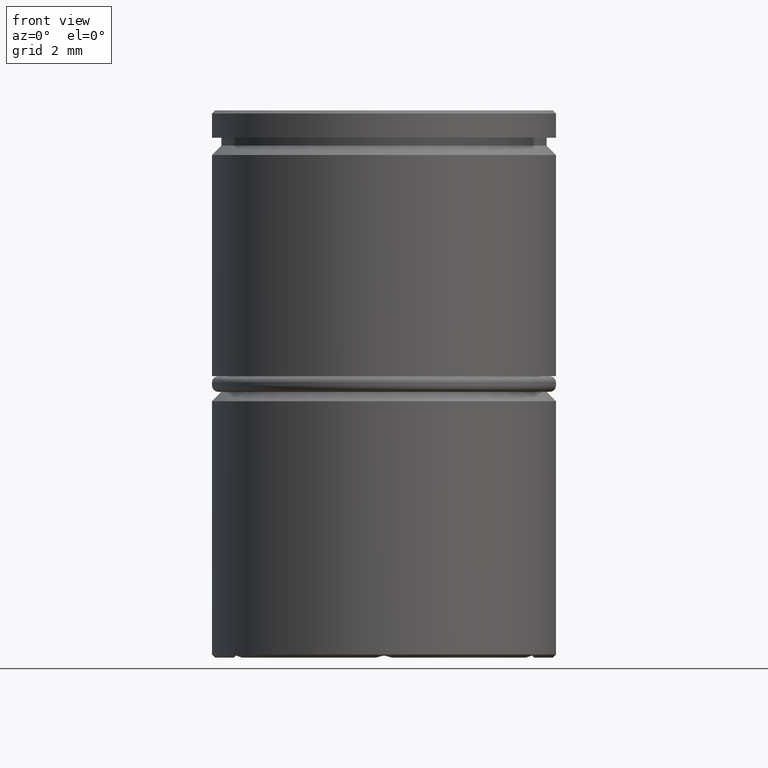
[diagram: clean part render]
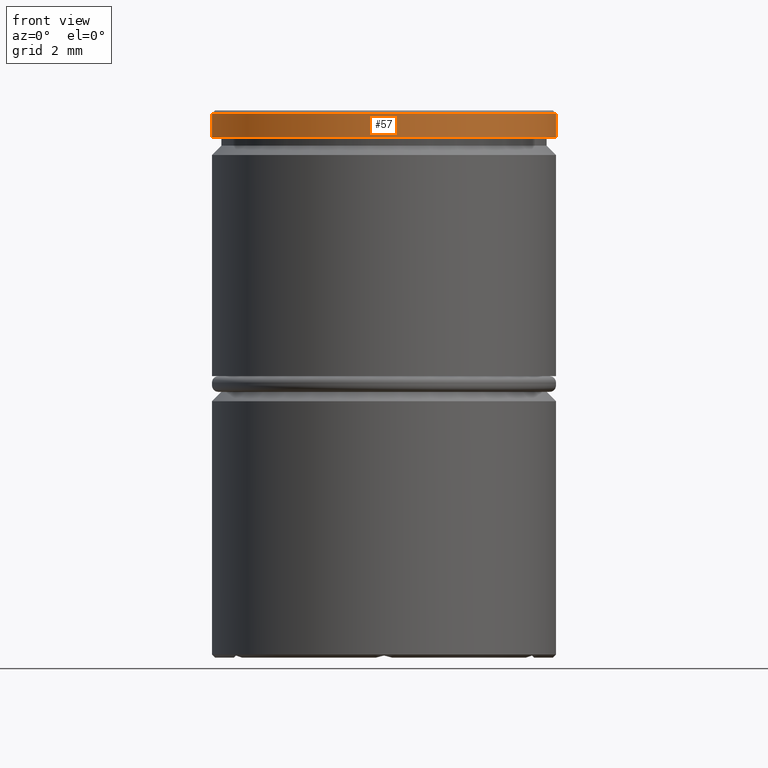
[diagram: same view with one face highlighted and labeled with its STEP entity id]
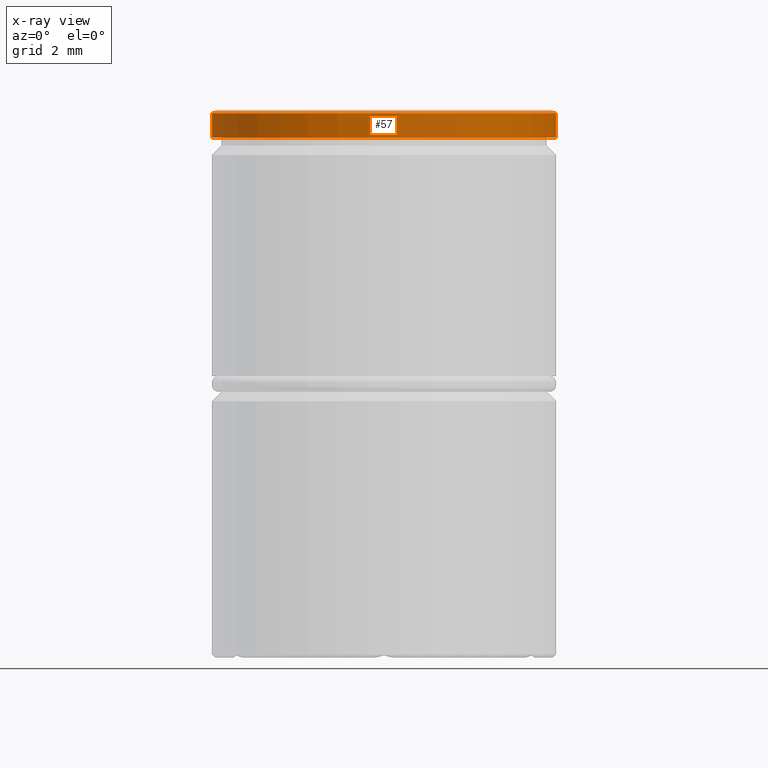
[diagram: x-ray of the same camera — body ghosted, the highlighted face saturated]
A machine part, front view. The second image highlights one B-rep face of the part: STEP entity #57.
The next image is the same camera in x-ray: the body ghosted, the highlighted face saturated — about 0% of this face is hidden behind the body in this view.
In plain terms, the highlighted cylindrical surface (partial cylindrical patch) has radius 5.5 mm, axis along (-0, -0, 1).
Its self-contained STEP definition (entity closure, byte-faithful):
#2 = VECTOR ( 'NONE', #927, 1000.000000000000000 ) ;
#18 = DIRECTION ( 'NONE',  ( 1.000000000000000000, 0.000000000000000000, 0.000000000000000000 ) ) ;
#57 = ADVANCED_FACE ( 'NONE', ( #663 ), #990, .T. ) ;
#121 = EDGE_CURVE ( 'NONE', #226, #685, #1035, .T. ) ;
#144 = CARTESIAN_POINT ( 'NONE',  ( 0.000000000000000000, 0.000000000000000000, -0.09999999999999592548 ) ) ;
#182 = ORIENTED_EDGE ( 'NONE', *, *, #1153, .F. ) ;
#226 = VERTEX_POINT ( 'NONE', #1376 ) ;
#399 = CARTESIAN_POINT ( 'NONE',  ( -5.500000000000000000, 6.735557395310442023E-16, -0.09999999999999592548 ) ) ;
#409 = ORIENTED_EDGE ( 'NONE', *, *, #680, .T. ) ;
#414 = CARTESIAN_POINT ( 'NONE',  ( 5.500000000000000000, 0.000000000000000000, -0.09999999999999592548 ) ) ;
#445 = ORIENTED_EDGE ( 'NONE', *, *, #121, .T. ) ;
#495 = CARTESIAN_POINT ( 'NONE',  ( -5.500000000000000000, 6.735557395310442023E-16, 0.000000000000000000 ) ) ;
#574 = EDGE_LOOP ( 'NONE', ( #182, #445, #409, #607 ) ) ;
#577 = CARTESIAN_POINT ( 'NONE',  ( 0.000000000000000000, 0.000000000000000000, -0.8749999999999998890 ) ) ;
#607 = ORIENTED_EDGE ( 'NONE', *, *, #917, .T. ) ;
#663 = FACE_OUTER_BOUND ( 'NONE', #574, .T. ) ;
#680 = EDGE_CURVE ( 'NONE', #685, #1240, #853, .T. ) ;
#685 = VERTEX_POINT ( 'NONE', #1200 ) ;
#736 = VECTOR ( 'NONE', #1120, 1000.000000000000000 ) ;
#853 = LINE ( 'NONE', #1317, #736 ) ;
#894 = AXIS2_PLACEMENT_3D ( 'NONE', #577, #1346, #919 ) ;
#917 = EDGE_CURVE ( 'NONE', #1240, #1107, #1125, .T. ) ;
#919 = DIRECTION ( 'NONE',  ( 1.000000000000000000, 0.000000000000000000, 0.000000000000000000 ) ) ;
#920 = LINE ( 'NONE', #495, #2 ) ;
#927 = DIRECTION ( 'NONE',  ( -0.000000000000000000, -0.000000000000000000, 1.000000000000000000 ) ) ;
#938 = AXIS2_PLACEMENT_3D ( 'NONE', #1314, #983, #18 ) ;
#983 = DIRECTION ( 'NONE',  ( -0.000000000000000000, -0.000000000000000000, 1.000000000000000000 ) ) ;
#990 = CYLINDRICAL_SURFACE ( 'NONE', #938, 5.500000000000000000 ) ;
#1035 = CIRCLE ( 'NONE', #894, 5.500000000000000000 ) ;
#1096 = DIRECTION ( 'NONE',  ( 0.000000000000000000, 0.000000000000000000, -1.000000000000000000 ) ) ;
#1107 = VERTEX_POINT ( 'NONE', #399 ) ;
#1120 = DIRECTION ( 'NONE',  ( -0.000000000000000000, -0.000000000000000000, 1.000000000000000000 ) ) ;
#1125 = CIRCLE ( 'NONE', #1301, 5.500000000000000000 ) ;
#1153 = EDGE_CURVE ( 'NONE', #226, #1107, #920, .T. ) ;
#1200 = CARTESIAN_POINT ( 'NONE',  ( 5.500000000000000000, 0.000000000000000000, -0.8749999999999998890 ) ) ;
#1226 = DIRECTION ( 'NONE',  ( 1.000000000000000000, 0.000000000000000000, 0.000000000000000000 ) ) ;
#1240 = VERTEX_POINT ( 'NONE', #414 ) ;
#1301 = AXIS2_PLACEMENT_3D ( 'NONE', #144, #1096, #1226 ) ;
#1314 = CARTESIAN_POINT ( 'NONE',  ( 0.000000000000000000, 0.000000000000000000, 0.000000000000000000 ) ) ;
#1317 = CARTESIAN_POINT ( 'NONE',  ( 5.500000000000000000, 0.000000000000000000, 0.000000000000000000 ) ) ;
#1346 = DIRECTION ( 'NONE',  ( -0.000000000000000000, -0.000000000000000000, 1.000000000000000000 ) ) ;
#1376 = CARTESIAN_POINT ( 'NONE',  ( -5.500000000000000000, 6.735557395310442023E-16, -0.8749999999999998890 ) ) ;